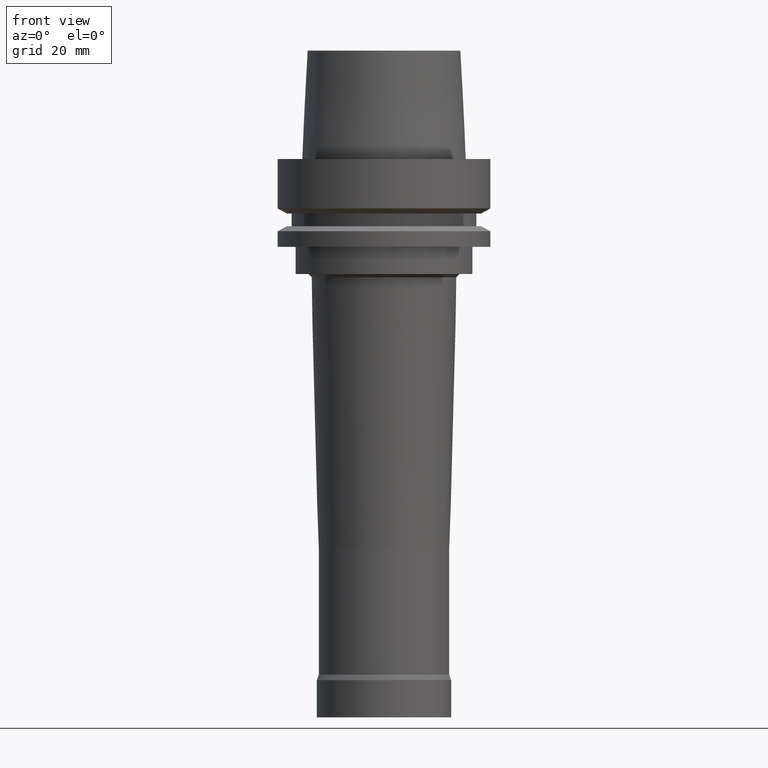
[diagram: clean part render]
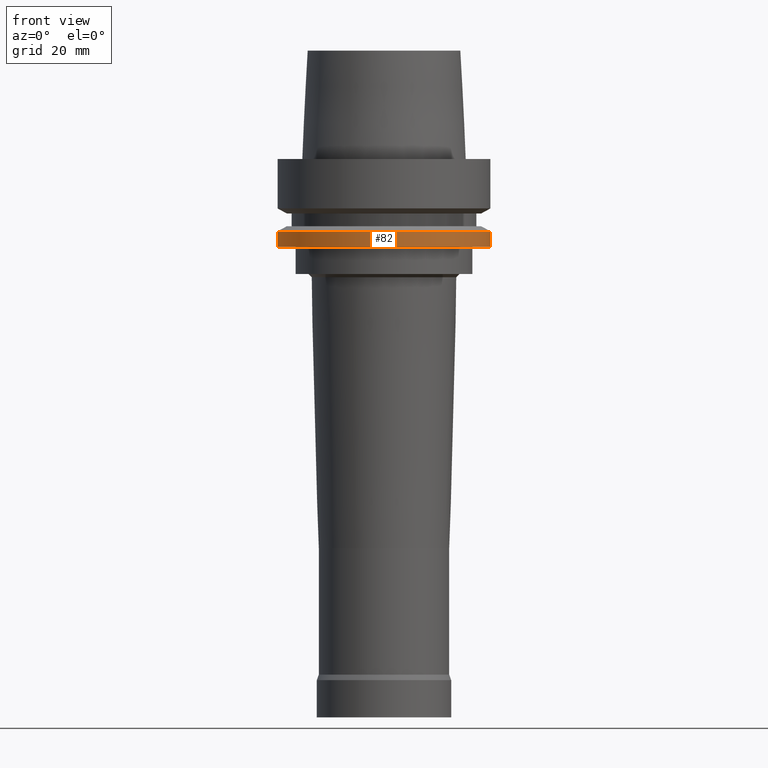
[diagram: same view with one face highlighted and labeled with its STEP entity id]
A machine part, front view. The second image highlights one B-rep face of the part: STEP entity #82.
In plain terms, the highlighted cylindrical surface (bore or boss wall) has radius 31.5 mm, axis along (-0, -0, 1).
Its self-contained STEP definition (entity closure, byte-faithful):
#82=ADVANCED_FACE('',(#116,#117),#118,.T.);
#116=FACE_BOUND('',#171,.T.);
#117=FACE_BOUND('',#172,.T.);
#118=CYLINDRICAL_SURFACE('',#173,31.5);
#171=EDGE_LOOP('',(#240));
#172=EDGE_LOOP('',(#241));
#173=AXIS2_PLACEMENT_3D('',#242,#243,#244);
#240=ORIENTED_EDGE('',*,*,#306,.F.);
#241=ORIENTED_EDGE('',*,*,#305,.T.);
#242=CARTESIAN_POINT('',(1.45051756469205E-015,2.90103512938411E-015,-23.688749535));
#243=DIRECTION('',(-6.12323399573677E-017,-1.22464679914735E-016,1.0));
#244=DIRECTION('',(-1.23259516440783E-032,1.0,1.22464679914735E-016));
#305=EDGE_CURVE('',#330,#330,#331,.T.);
#306=EDGE_CURVE('',#332,#332,#333,.T.);
#330=VERTEX_POINT('',#366);
#331=CIRCLE('',#367,31.5);
#332=VERTEX_POINT('',#368);
#333=CIRCLE('',#369,31.5);
#366=CARTESIAN_POINT('',(1.30899429049255E-015,31.5,-21.37749907));
#367=AXIS2_PLACEMENT_3D('',#409,#410,#411);
#368=CARTESIAN_POINT('',(1.59204083889156E-015,31.5,-26.0));
#369=AXIS2_PLACEMENT_3D('',#412,#413,#414);
#409=CARTESIAN_POINT('',(1.30899429049255E-015,2.6179885809851E-015,-21.37749907));
#410=DIRECTION('',(6.12323399573677E-017,1.22464679914735E-016,-1.0));
#411=DIRECTION('',(-1.23259516440783E-032,1.0,1.22464679914735E-016));
#412=CARTESIAN_POINT('',(1.59204083889156E-015,3.18408167778312E-015,-26.0));
#413=DIRECTION('',(6.12323399573677E-017,1.22464679914735E-016,-1.0));
#414=DIRECTION('',(-1.23259516440783E-032,1.0,1.22464679914735E-016));